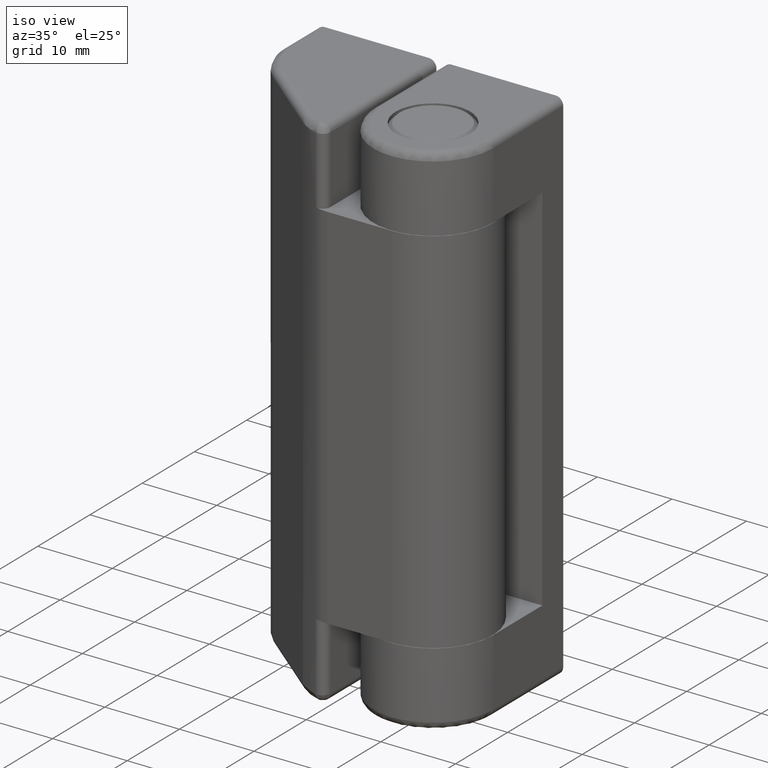
[diagram: clean part render]
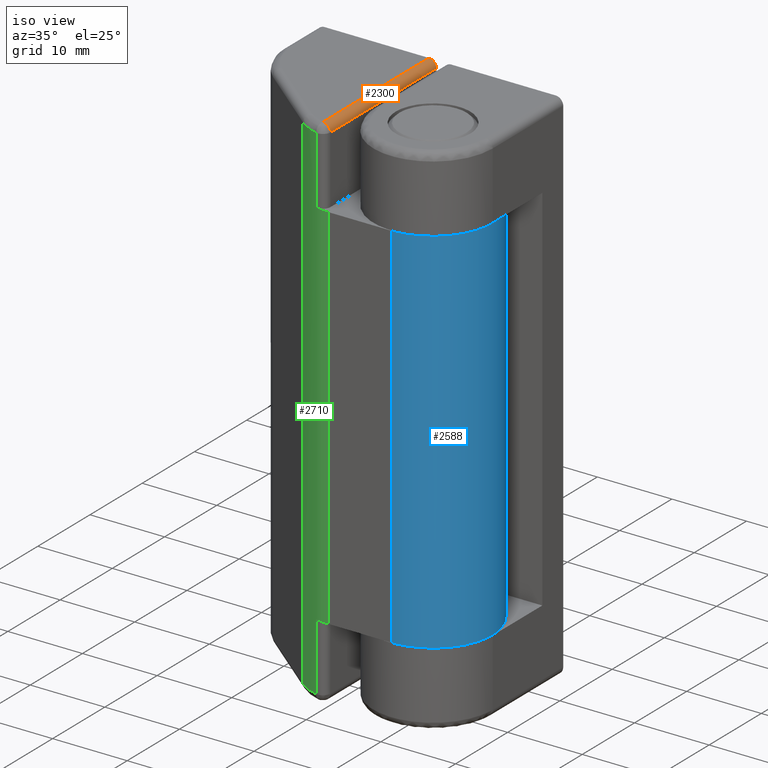
[diagram: same view with three faces highlighted in distinct colors, each labeled with its STEP entity id]
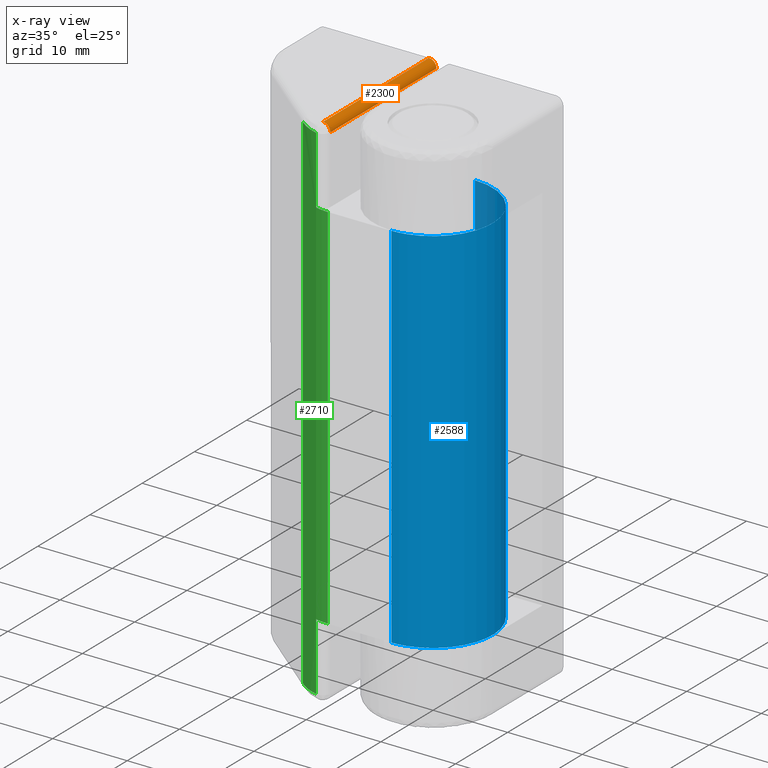
[diagram: x-ray of the same camera — body ghosted, the three highlighted faces saturated]
A machine part, iso view with three faces highlighted in distinct colors.
The next image is the same camera in x-ray (body ghosted, the three faces saturated) — at least one of them is partly hidden behind the body in this view.
Their STEP definitions:

[orange] entity #2300 — the highlighted face is a freeform B-spline surface patch.
#2153=CARTESIAN_POINT('',(-9.999999999999799,-6.807816000000001,70.0));
#2154=VERTEX_POINT('',#2153);
#2222=CARTESIAN_POINT('',(-8.999999999999799,-6.807816000000001,69.0));
#2223=VERTEX_POINT('',#2222);
#2239=CARTESIAN_POINT('',(-8.999999999999799,-6.807816000000001,69.0));
#2240=CARTESIAN_POINT('',(-8.999999999999799,-6.807816000000001,70.0));
#2241=CARTESIAN_POINT('',(-9.999999999999799,-6.807816000000001,70.0));
#2249=(BOUNDED_CURVE()B_SPLINE_CURVE(2,(#2239,#2240,#2241),.UNSPECIFIED.,.F.,.U.)CURVE()GEOMETRIC_REPRESENTATION_ITEM()QUASI_UNIFORM_CURVE()RATIONAL_B_SPLINE_CURVE((1.0,0.707106781186548,1.0))REPRESENTATION_ITEM(''));
#2250=EDGE_CURVE('',#2223,#2154,#2249,.T.);
#2256=CARTESIAN_POINT('',(-10.043619387365140,14.007695399999999,69.999048221581859));
#2257=CARTESIAN_POINT('',(-10.043619387365140,-7.328203785000003,69.999048221581859));
#2258=CARTESIAN_POINT('',(-8.923939735540765,14.007695400000005,70.047934490935972));
#2259=CARTESIAN_POINT('',(-8.923939735540765,-7.328203785000004,70.047934490935972));
#2260=CARTESIAN_POINT('',(-9.002457086767880,14.007695400000001,68.929941907956447));
#2261=CARTESIAN_POINT('',(-9.002457086767880,-7.328203785000002,68.929941907956447));
#2269=(BOUNDED_SURFACE()B_SPLINE_SURFACE(1,2,((#2256,#2258,#2260),(#2257,#2259,#2261)),.UNSPECIFIED.,.F.,.F.,.U.)B_SPLINE_SURFACE_WITH_KNOTS((2,2),(3,3),(0.0,21.335899185000009),(0.0,0.994386594966985),.UNSPECIFIED.)GEOMETRIC_REPRESENTATION_ITEM()RATIONAL_B_SPLINE_SURFACE(((1.0,0.664513898535122,0.996233561259061),(1.0,0.664513898535122,0.996233561259061)))REPRESENTATION_ITEM('')SURFACE());
#2270=ORIENTED_EDGE('',*,*,#2250,.F.);
#2271=CARTESIAN_POINT('',(-8.999999999999799,13.500000000000000,69.0));
#2272=VERTEX_POINT('',#2271);
#2273=CARTESIAN_POINT('',(-8.999999999999799,13.500000000000000,69.0));
#2274=CARTESIAN_POINT('',(-8.999999999999799,-6.807816000000001,69.0));
#2275=QUASI_UNIFORM_CURVE('',1,(#2273,#2274),.UNSPECIFIED.,.F.,.U.);
#2276=EDGE_CURVE('',#2272,#2223,#2275,.T.);
#2277=ORIENTED_EDGE('',*,*,#2276,.F.);
#2278=CARTESIAN_POINT('',(-9.999999999999799,13.500000000000000,70.0));
#2279=VERTEX_POINT('',#2278);
#2280=CARTESIAN_POINT('',(-9.999999999999799,13.500000000000000,70.0));
#2281=CARTESIAN_POINT('',(-8.999999999999799,13.500000000000000,70.0));
#2282=CARTESIAN_POINT('',(-8.999999999999799,13.500000000000000,69.0));
#2290=(BOUNDED_CURVE()B_SPLINE_CURVE(2,(#2280,#2281,#2282),.UNSPECIFIED.,.F.,.U.)CURVE()GEOMETRIC_REPRESENTATION_ITEM()QUASI_UNIFORM_CURVE()RATIONAL_B_SPLINE_CURVE((1.0,0.707106781186548,1.0))REPRESENTATION_ITEM(''));
#2291=EDGE_CURVE('',#2279,#2272,#2290,.T.);
#2292=ORIENTED_EDGE('',*,*,#2291,.F.);
#2293=CARTESIAN_POINT('',(-9.999999999999799,-6.807816000000001,70.0));
#2294=CARTESIAN_POINT('',(-9.999999999999799,13.500000000000000,70.0));
#2295=QUASI_UNIFORM_CURVE('',1,(#2293,#2294),.UNSPECIFIED.,.F.,.U.);
#2296=EDGE_CURVE('',#2154,#2279,#2295,.T.);
#2297=ORIENTED_EDGE('',*,*,#2296,.F.);
#2298=EDGE_LOOP('',(#2270,#2277,#2292,#2297));
#2299=FACE_OUTER_BOUND('',#2298,.T.);
#2300=ADVANCED_FACE('',(#2299),#2269,.T.);

[blue] entity #2588 — the highlighted face is a freeform B-spline surface patch.
#2306=CARTESIAN_POINT('',(-1.469528E-015,8.0,10.050003000000020));
#2307=VERTEX_POINT('',#2306);
#2308=CARTESIAN_POINT('',(0.0,-8.0,10.050003000000020));
#2309=VERTEX_POINT('',#2308);
#2310=CARTESIAN_POINT('',(0.0,8.0,10.050003000000020));
#2311=CARTESIAN_POINT('',(8.0,8.0,10.050003000000022));
#2312=CARTESIAN_POINT('',(8.0,0.0,10.050003000000020));
#2313=CARTESIAN_POINT('',(8.0,-8.0,10.050003000000022));
#2314=CARTESIAN_POINT('',(0.0,-8.0,10.050003000000020));
#2322=(BOUNDED_CURVE()B_SPLINE_CURVE(2,(#2310,#2311,#2312,#2313,#2314),.UNSPECIFIED.,.F.,.U.)B_SPLINE_CURVE_WITH_KNOTS((3,2,3),(0.0,0.500000000000000,1.0),.UNSPECIFIED.)CURVE()GEOMETRIC_REPRESENTATION_ITEM()RATIONAL_B_SPLINE_CURVE((1.0,0.707106781186548,1.0,0.707106781186548,1.0))REPRESENTATION_ITEM(''));
#2323=EDGE_CURVE('',#2307,#2309,#2322,.T.);
#2405=CARTESIAN_POINT('',(-1.469528E-015,8.0,59.949996999999897));
#2406=VERTEX_POINT('',#2405);
#2407=CARTESIAN_POINT('',(0.0,-8.0,59.949996999999897));
#2408=VERTEX_POINT('',#2407);
#2409=CARTESIAN_POINT('',(0.0,8.0,59.949996999999897));
#2410=CARTESIAN_POINT('',(8.0,8.0,59.949996999999890));
#2411=CARTESIAN_POINT('',(8.0,0.0,59.949996999999897));
#2412=CARTESIAN_POINT('',(8.0,-8.0,59.949996999999890));
#2413=CARTESIAN_POINT('',(0.0,-8.0,59.949996999999897));
#2421=(BOUNDED_CURVE()B_SPLINE_CURVE(2,(#2409,#2410,#2411,#2412,#2413),.UNSPECIFIED.,.F.,.U.)B_SPLINE_CURVE_WITH_KNOTS((3,2,3),(0.0,0.500000000000000,1.0),.UNSPECIFIED.)CURVE()GEOMETRIC_REPRESENTATION_ITEM()RATIONAL_B_SPLINE_CURVE((1.0,0.707106781186548,1.0,0.707106781186548,1.0))REPRESENTATION_ITEM(''));
#2422=EDGE_CURVE('',#2406,#2408,#2421,.T.);
#2511=CARTESIAN_POINT('',(-1.469528E-015,8.0,59.949996999999897));
#2512=CARTESIAN_POINT('',(-1.469528E-015,8.0,10.050003000000020));
#2513=QUASI_UNIFORM_CURVE('',1,(#2511,#2512),.UNSPECIFIED.,.F.,.U.);
#2514=EDGE_CURVE('',#2406,#2307,#2513,.T.);
#2550=CARTESIAN_POINT('',(0.0,-8.0,59.949996999999897));
#2551=CARTESIAN_POINT('',(0.0,-8.0,10.050003000000020));
#2552=QUASI_UNIFORM_CURVE('',1,(#2550,#2551),.UNSPECIFIED.,.F.,.U.);
#2553=EDGE_CURVE('',#2408,#2309,#2552,.T.);
#2564=CARTESIAN_POINT('',(-0.209415586462995,-7.997258599804455,61.197496849999901));
#2565=CARTESIAN_POINT('',(-0.209415586462995,-7.997258599804455,8.771315653750012));
#2566=CARTESIAN_POINT('',(8.217936582743198,-8.217936582743217,61.197496849999894));
#2567=CARTESIAN_POINT('',(8.217936582743198,-8.217936582743217,8.771315653750012));
#2568=CARTESIAN_POINT('',(7.997258599804456,0.209415586462975,61.197496849999901));
#2569=CARTESIAN_POINT('',(7.997258599804456,0.209415586462975,8.771315653750012));
#2570=CARTESIAN_POINT('',(7.776580616865717,8.636767755669169,61.197496849999894));
#2571=CARTESIAN_POINT('',(7.776580616865717,8.636767755669169,8.771315653750012));
#2572=CARTESIAN_POINT('',(-0.627672765822750,7.975338669865023,61.197496849999901));
#2573=CARTESIAN_POINT('',(-0.627672765822750,7.975338669865023,8.771315653750012));
#2581=(BOUNDED_SURFACE()B_SPLINE_SURFACE(1,2,((#2564,#2566,#2568,#2570,#2572),(#2565,#2567,#2569,#2571,#2573)),.UNSPECIFIED.,.F.,.F.,.U.)B_SPLINE_SURFACE_WITH_KNOTS((2,2),(3,2,3),(0.0,52.426181196249892),(0.0,13.748284990938750,27.496569981877499),.UNSPECIFIED.)GEOMETRIC_REPRESENTATION_ITEM()RATIONAL_B_SPLINE_SURFACE(((1.0,0.688354575693754,1.0,0.688354575693754,1.0),(1.0,0.688354575693754,1.0,0.688354575693754,1.0)))REPRESENTATION_ITEM('')SURFACE());
#2582=ORIENTED_EDGE('',*,*,#2323,.F.);
#2583=ORIENTED_EDGE('',*,*,#2514,.F.);
#2584=ORIENTED_EDGE('',*,*,#2422,.T.);
#2585=ORIENTED_EDGE('',*,*,#2553,.T.);
#2586=EDGE_LOOP('',(#2582,#2583,#2584,#2585));
#2587=FACE_OUTER_BOUND('',#2586,.T.);
#2588=ADVANCED_FACE('',(#2587),#2581,.T.);

[green] entity #2710 — the highlighted face is a freeform B-spline surface patch.
#1764=CARTESIAN_POINT('',(-12.936767999999800,-6.409084000000000,1.0));
#1765=VERTEX_POINT('',#1764);
#1812=CARTESIAN_POINT('',(-10.251068294446361,-7.775785825976549,1.0));
#1813=VERTEX_POINT('',#1812);
#1827=CARTESIAN_POINT('',(-12.936767999999800,-6.409084000000000,1.0));
#1828=CARTESIAN_POINT('',(-11.744537133790741,-7.388415616450649,1.0));
#1829=CARTESIAN_POINT('',(-10.251068294446361,-7.775785825976555,1.0));
#1837=(BOUNDED_CURVE()B_SPLINE_CURVE(2,(#1827,#1828,#1829),.UNSPECIFIED.,.F.,.U.)CURVE()GEOMETRIC_REPRESENTATION_ITEM()QUASI_UNIFORM_CURVE()RATIONAL_B_SPLINE_CURVE((1.0,0.976559830979944,1.0))REPRESENTATION_ITEM(''));
#1838=EDGE_CURVE('',#1765,#1813,#1837,.T.);
#2101=CARTESIAN_POINT('',(-12.936767999999800,-6.409084000000000,69.0));
#2102=VERTEX_POINT('',#2101);
#2151=CARTESIAN_POINT('',(-10.251068294446361,-7.775785825976549,69.0));
#2152=VERTEX_POINT('',#2151);
#2182=CARTESIAN_POINT('',(-10.251068294446361,-7.775785825976556,69.0));
#2183=CARTESIAN_POINT('',(-11.744537133790731,-7.388415616450652,69.0));
#2184=CARTESIAN_POINT('',(-12.936767999999800,-6.409084000000000,69.0));
#2192=(BOUNDED_CURVE()B_SPLINE_CURVE(2,(#2182,#2183,#2184),.UNSPECIFIED.,.F.,.U.)CURVE()GEOMETRIC_REPRESENTATION_ITEM()QUASI_UNIFORM_CURVE()RATIONAL_B_SPLINE_CURVE((1.0,0.976559830979944,1.0))REPRESENTATION_ITEM(''));
#2193=EDGE_CURVE('',#2152,#2102,#2192,.T.);
#2325=CARTESIAN_POINT('',(-8.493590999999800,-8.0,10.050003000000020));
#2326=VERTEX_POINT('',#2325);
#2332=CARTESIAN_POINT('',(-10.251068294446361,-7.775785825976549,10.050003000000020));
#2333=VERTEX_POINT('',#2332);
#2334=CARTESIAN_POINT('',(-8.493590999999800,-8.0,10.050003000000020));
#2335=CARTESIAN_POINT('',(-9.386631964525234,-8.0,10.050003000000022));
#2336=CARTESIAN_POINT('',(-10.251068294446361,-7.775785825976556,10.050003000000020));
#2344=(BOUNDED_CURVE()B_SPLINE_CURVE(2,(#2334,#2335,#2336),.UNSPECIFIED.,.F.,.U.)CURVE()GEOMETRIC_REPRESENTATION_ITEM()QUASI_UNIFORM_CURVE()RATIONAL_B_SPLINE_CURVE((1.0,0.991960030371924,1.0))REPRESENTATION_ITEM(''));
#2345=EDGE_CURVE('',#2326,#2333,#2344,.T.);
#2453=CARTESIAN_POINT('',(-10.251068294446361,-7.775785825976549,59.949996999999897));
#2454=VERTEX_POINT('',#2453);
#2470=CARTESIAN_POINT('',(-8.493590999999800,-8.0,59.949996999999897));
#2471=VERTEX_POINT('',#2470);
#2472=CARTESIAN_POINT('',(-8.493590999999800,-8.0,59.949996999999897));
#2473=CARTESIAN_POINT('',(-9.386631964525234,-8.0,59.949996999999897));
#2474=CARTESIAN_POINT('',(-10.251068294446361,-7.775785825976556,59.949996999999897));
#2482=(BOUNDED_CURVE()B_SPLINE_CURVE(2,(#2472,#2473,#2474),.UNSPECIFIED.,.F.,.U.)CURVE()GEOMETRIC_REPRESENTATION_ITEM()QUASI_UNIFORM_CURVE()RATIONAL_B_SPLINE_CURVE((1.0,0.991960030371924,1.0))REPRESENTATION_ITEM(''));
#2483=EDGE_CURVE('',#2471,#2454,#2482,.T.);
#2556=CARTESIAN_POINT('',(-8.493590999999800,-8.0,59.949996999999897));
#2557=CARTESIAN_POINT('',(-8.493590999999800,-8.0,10.050003000000020));
#2558=QUASI_UNIFORM_CURVE('',1,(#2556,#2557),.UNSPECIFIED.,.F.,.U.);
#2559=EDGE_CURVE('',#2471,#2326,#2558,.T.);
#2663=CARTESIAN_POINT('',(-10.251068294446361,-7.775785825976549,10.050003000000020));
#2664=CARTESIAN_POINT('',(-10.251068294446361,-7.775785825976549,1.0));
#2665=QUASI_UNIFORM_CURVE('',1,(#2663,#2664),.UNSPECIFIED.,.F.,.U.);
#2666=EDGE_CURVE('',#2333,#1813,#2665,.T.);
#2678=CARTESIAN_POINT('',(-13.089758638186559,-6.279701037150177,70.700000000000003));
#2679=CARTESIAN_POINT('',(-13.089758638186559,-6.279701037150177,-0.742500000000007));
#2680=CARTESIAN_POINT('',(-11.011707353047752,-8.088718631146902,70.700000000000003));
#2681=CARTESIAN_POINT('',(-11.011707353047752,-8.088718631146902,-0.742500000000007));
#2682=CARTESIAN_POINT('',(-8.258118392202430,-7.996038354024158,70.699999999999989));
#2683=CARTESIAN_POINT('',(-8.258118392202430,-7.996038354024158,-0.742500000000007));
#2691=(BOUNDED_SURFACE()B_SPLINE_SURFACE(1,2,((#2678,#2680,#2682),(#2679,#2681,#2683)),.UNSPECIFIED.,.F.,.F.,.U.)B_SPLINE_SURFACE_WITH_KNOTS((2,2),(3,3),(0.0,71.442500000000010),(0.0,5.311970471881990),.UNSPECIFIED.)GEOMETRIC_REPRESENTATION_ITEM()RATIONAL_B_SPLINE_SURFACE(((1.0,0.928930627520147,0.996590260115489),(1.0,0.928930627520147,0.996590260115489)))REPRESENTATION_ITEM('')SURFACE());
#2692=CARTESIAN_POINT('',(-12.936767999999800,-6.409084000000000,69.0));
#2693=CARTESIAN_POINT('',(-12.936767999999800,-6.409084000000000,1.0));
#2694=QUASI_UNIFORM_CURVE('',1,(#2692,#2693),.UNSPECIFIED.,.F.,.U.);
#2695=EDGE_CURVE('',#2102,#1765,#2694,.T.);
#2696=ORIENTED_EDGE('',*,*,#2695,.T.);
#2697=ORIENTED_EDGE('',*,*,#1838,.T.);
#2698=ORIENTED_EDGE('',*,*,#2666,.F.);
#2699=ORIENTED_EDGE('',*,*,#2345,.F.);
#2700=ORIENTED_EDGE('',*,*,#2559,.F.);
#2701=ORIENTED_EDGE('',*,*,#2483,.T.);
#2702=CARTESIAN_POINT('',(-10.251068294446361,-7.775785825976549,69.0));
#2703=CARTESIAN_POINT('',(-10.251068294446361,-7.775785825976549,59.949996999999897));
#2704=QUASI_UNIFORM_CURVE('',1,(#2702,#2703),.UNSPECIFIED.,.F.,.U.);
#2705=EDGE_CURVE('',#2152,#2454,#2704,.T.);
#2706=ORIENTED_EDGE('',*,*,#2705,.F.);
#2707=ORIENTED_EDGE('',*,*,#2193,.T.);
#2708=EDGE_LOOP('',(#2696,#2697,#2698,#2699,#2700,#2701,#2706,#2707));
#2709=FACE_OUTER_BOUND('',#2708,.T.);
#2710=ADVANCED_FACE('',(#2709),#2691,.T.);